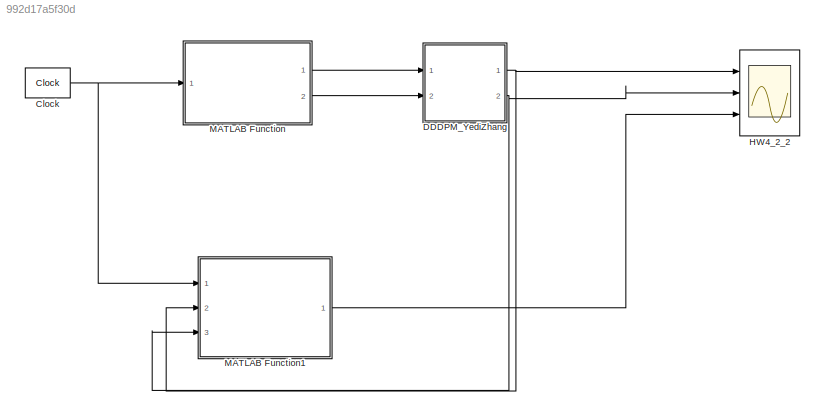
MODEL slx_992d17a5f30d
KIND model
CONFIG AbsTol = auto
CONFIG EnableMultiTasking = on
CONFIG FixedStep = 1
CONFIG MaxStep = auto
CONFIG MinStep = auto
CONFIG RelTol = 1e-3
CONFIG SampleTimeConstraint = Unconstrained
CONFIG Solver = FixedStepDiscrete
CONFIG SolverName = FixedStepDiscrete
CONFIG StartTime = 0.0
CONFIG StopTime = 6000
BLOCK [Clock] Clock
  DisplayTime = on
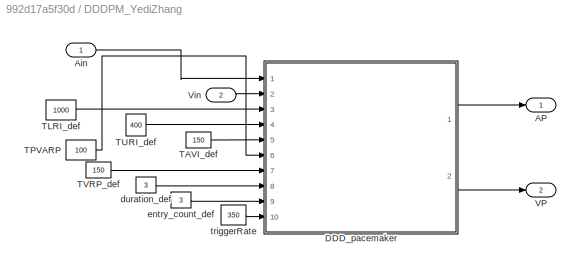
BLOCK [SubSystem] DDDPM_YediZhang
  Ports = [2, 2]
  RequestExecContextInheritance = off
  Variant = off
BLOCK [Outport] DDDPM_YediZhang/AP
  IconDisplay = Port number
BLOCK [Inport] DDDPM_YediZhang/Ain
  IconDisplay = Port number
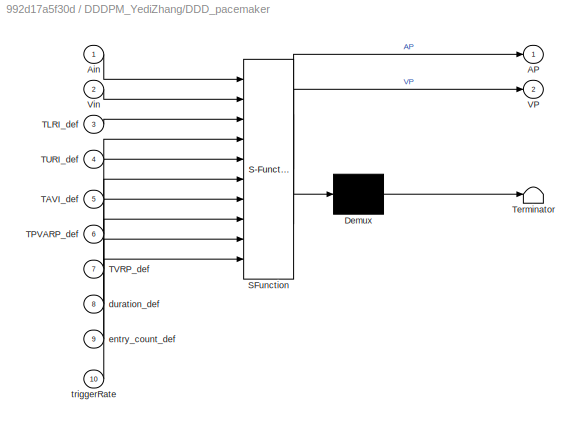
BLOCK [SubSystem] DDDPM_YediZhang/DDD_pacemaker
  ErrorFcn = Stateflow.Translate.translate
  PermitHierarchicalResolution = ExplicitOnly
  Ports = [10, 2]
  RequestExecContextInheritance = off
  SFBlockType = Chart
  TreatAsAtomicUnit = on
  Variant = off
BLOCK [Demux] DDDPM_YediZhang/DDD_pacemaker/ Demux 
  Outputs = 1
  Ports = [1, 1]
BLOCK [S-Function] DDDPM_YediZhang/DDD_pacemaker/ SFunction 
  EnableBusSupport = on
  FunctionName = sf_sfun
  PortCounts = [10 3]
  Ports = [10, 3]
  SFcnIsStateOwnerBlock = off
  SFunctionDeploymentMode = off
  Tag = Stateflow S-Function HW4_YediZhang_2_2 3
BLOCK [Terminator] DDDPM_YediZhang/DDD_pacemaker/ Terminator 
BLOCK [Outport] DDDPM_YediZhang/DDD_pacemaker/AP
  IconDisplay = Port number
BLOCK [Inport] DDDPM_YediZhang/DDD_pacemaker/Ain
  IconDisplay = Port number
BLOCK [Inport] DDDPM_YediZhang/DDD_pacemaker/TAVI_def
  IconDisplay = Port number
  Port = 5
BLOCK [Inport] DDDPM_YediZhang/DDD_pacemaker/TLRI_def
  IconDisplay = Port number
  Port = 3
BLOCK [Inport] DDDPM_YediZhang/DDD_pacemaker/TPVARP_def
  IconDisplay = Port number
  Port = 6
BLOCK [Inport] DDDPM_YediZhang/DDD_pacemaker/TURI_def
  IconDisplay = Port number
  Port = 4
BLOCK [Inport] DDDPM_YediZhang/DDD_pacemaker/TVRP_def
  IconDisplay = Port number
  Port = 7
BLOCK [Outport] DDDPM_YediZhang/DDD_pacemaker/VP
  IconDisplay = Port number
  Port = 2
BLOCK [Inport] DDDPM_YediZhang/DDD_pacemaker/Vin
  IconDisplay = Port number
  Port = 2
BLOCK [Inport] DDDPM_YediZhang/DDD_pacemaker/duration_def
  IconDisplay = Port number
  Port = 8
BLOCK [Inport] DDDPM_YediZhang/DDD_pacemaker/entry_count_def
  IconDisplay = Port number
  Port = 9
BLOCK [Inport] DDDPM_YediZhang/DDD_pacemaker/triggerRate
  IconDisplay = Port number
  Port = 10
BLOCK [Constant] DDDPM_YediZhang/TAVI_def
  OutDataTypeStr = uint16
  Value = 150
BLOCK [Constant] DDDPM_YediZhang/TLRI_def
  OutDataTypeStr = uint16
  Value = 1000
BLOCK [Constant] DDDPM_YediZhang/TPVARP
  OutDataTypeStr = uint16
  Value = 100
BLOCK [Constant] DDDPM_YediZhang/TURI_def
  OutDataTypeStr = uint16
  Value = 400
BLOCK [Constant] DDDPM_YediZhang/TVRP_def
  OutDataTypeStr = uint16
  Value = 150
BLOCK [Outport] DDDPM_YediZhang/VP
  IconDisplay = Port number
  Port = 2
BLOCK [Inport] DDDPM_YediZhang/Vin
  IconDisplay = Port number
  Port = 2
BLOCK [Constant] DDDPM_YediZhang/duration_def
  OutDataTypeStr = uint16
  Value = 3
BLOCK [Constant] DDDPM_YediZhang/entry_count_def
  OutDataTypeStr = uint16
  Value = 3
BLOCK [Constant] DDDPM_YediZhang/triggerRate
  OutDataTypeStr = uint16
  Value = 350
BLOCK [Scope] HW4_2_2
  NumInputPorts = 3
  Ports = [3]
  ScopeSpecificationString = Simulink.scopes.TimeScopeBlockCfg('CurrentConfiguration', extmgr.ConfigurationSet(extmgr.Configuration('Core','General UI',true),extmgr.Configuration('Core','Source UI',true),extmgr.Configuration('Sources','WiredSimulink',true,'DataLoggingVariableName','ScopeData1'),extmgr.Configuration('Visuals','Time Domain',true,'SerializedDisplays',{struct('MinYLimReal','-0.125','MaxYLimReal','1.125','YLabelRe...<+2946ch>
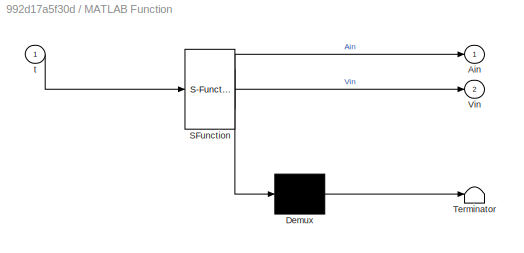
BLOCK [SubSystem] MATLAB Function
  ErrorFcn = Stateflow.Translate.translate
  PermitHierarchicalResolution = ExplicitOnly
  Ports = [1, 2]
  RequestExecContextInheritance = off
  SFBlockType = MATLAB Function
  TreatAsAtomicUnit = on
  Variant = off
BLOCK [Demux] MATLAB Function/ Demux 
  Outputs = 1
  Ports = [1, 1]
BLOCK [S-Function] MATLAB Function/ SFunction 
  EnableBusSupport = on
  FunctionName = sf_sfun
  PortCounts = [1 3]
  Ports = [1, 3]
  SFcnIsStateOwnerBlock = off
  SFunctionDeploymentMode = off
  Tag = Stateflow S-Function HW4_YediZhang_2_2 1
BLOCK [Terminator] MATLAB Function/ Terminator 
BLOCK [Outport] MATLAB Function/Ain
  IconDisplay = Port number
BLOCK [Outport] MATLAB Function/Vin
  IconDisplay = Port number
  Port = 2
BLOCK [Inport] MATLAB Function/t
  IconDisplay = Port number
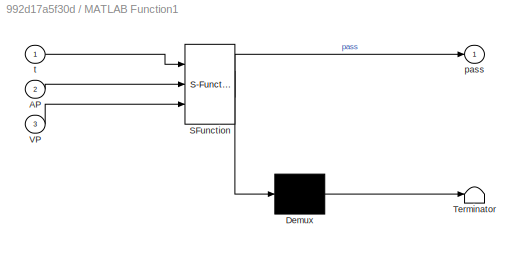
BLOCK [SubSystem] MATLAB Function1
  ErrorFcn = Stateflow.Translate.translate
  PermitHierarchicalResolution = ExplicitOnly
  Ports = [3, 1]
  RequestExecContextInheritance = off
  SFBlockType = MATLAB Function
  TreatAsAtomicUnit = on
  Variant = off
BLOCK [Demux] MATLAB Function1/ Demux 
  Outputs = 1
  Ports = [1, 1]
BLOCK [S-Function] MATLAB Function1/ SFunction 
  EnableBusSupport = on
  FunctionName = sf_sfun
  PortCounts = [3 2]
  Ports = [3, 2]
  SFcnIsStateOwnerBlock = off
  SFunctionDeploymentMode = off
  Tag = Stateflow S-Function HW4_YediZhang_2_2 2
BLOCK [Terminator] MATLAB Function1/ Terminator 
BLOCK [Inport] MATLAB Function1/AP
  IconDisplay = Port number
  Port = 2
BLOCK [Inport] MATLAB Function1/VP
  IconDisplay = Port number
  Port = 3
BLOCK [Outport] MATLAB Function1/pass
  IconDisplay = Port number
BLOCK [Inport] MATLAB Function1/t
  IconDisplay = Port number
NET Clock:1 -> MATLAB Function1:1, MATLAB Function:1
LINE DDDPM_YediZhang/Ain:1 -> DDDPM_YediZhang/DDD_pacemaker:1
LINE DDDPM_YediZhang/DDD_pacemaker:1 -> DDDPM_YediZhang/AP:1
LINE DDDPM_YediZhang/DDD_pacemaker:2 -> DDDPM_YediZhang/VP:1
LINE DDDPM_YediZhang/TAVI_def:1 -> DDDPM_YediZhang/DDD_pacemaker:5
LINE DDDPM_YediZhang/TLRI_def:1 -> DDDPM_YediZhang/DDD_pacemaker:3
LINE DDDPM_YediZhang/TPVARP:1 -> DDDPM_YediZhang/DDD_pacemaker:6
LINE DDDPM_YediZhang/TURI_def:1 -> DDDPM_YediZhang/DDD_pacemaker:4
LINE DDDPM_YediZhang/TVRP_def:1 -> DDDPM_YediZhang/DDD_pacemaker:7
LINE DDDPM_YediZhang/Vin:1 -> DDDPM_YediZhang/DDD_pacemaker:2
LINE DDDPM_YediZhang/duration_def:1 -> DDDPM_YediZhang/DDD_pacemaker:8
LINE DDDPM_YediZhang/entry_count_def:1 -> DDDPM_YediZhang/DDD_pacemaker:9
LINE DDDPM_YediZhang/triggerRate:1 -> DDDPM_YediZhang/DDD_pacemaker:10
NET DDDPM_YediZhang:1 -> HW4_2_2:1, MATLAB Function1:2
NET DDDPM_YediZhang:2 -> HW4_2_2:2, MATLAB Function1:3
LINE MATLAB Function1:1 -> HW4_2_2:3
LINE MATLAB Function:1 -> DDDPM_YediZhang:1
LINE MATLAB Function:2 -> DDDPM_YediZhang:2
note: NET lines group one-source signal fan-out (src -> all destinations, sorted); 1:1 wires keep LINE
CHART MATLAB Function states=1 transitions=1
  STATE_LABEL 'eML_blk_kernel()'
  STATE_LABEL 'SCRIPT:\nfunction [Ain,Vin] = PM_tester_in(t)\n\n%Test inputs of Ain\nif t==50 || t==150 || t==220 || t==500 || t==1210 || t==1860 || t==2420 || t==3600 || t==3610 || t==3620 || t==3630 || t==3640 || t==4350 || t==4800 || t==5550\n    Ain=true;\nelse\n    Ain=false;\nend\n\n\n\n\n%Test inputs of Vin\nif t==169 || t==330 || t==3730 || t==3900 || t==4100 || t==4300 || t==4500\n    Vin=true;\nelse\n    Vin=false;\nend...<+3ch>'
CHART MATLAB Function1 states=1 transitions=1
  STATE_LABEL 'eML_blk_kernel()'
  STATE_LABEL 'SCRIPT:\nfunction pass = PM_tester_out(t,AP,VP)\npass=true;\n% Evaluating PM outputs -- 1\nif t==731\n    if VP==true\n        \n    else\n        pass=false;\n        return;\n    end\nend\n% Evaluating PM outputs -- 2\nif t==1361\n    if VP==true\n        \n    else\n        pass=false;\n        return;\n    end\nend\n% Evaluating PM outputs -- 3\nif t==2011\n    if VP==true\n        \n    else\n        pass=false;\n     ...<+510ch>'
CHART DDDPM_YediZhang/DDD_pacemaker states=77 transitions=56
  STATE_LABEL '<!DOCTYPE HTML PUBLIC "-//W3C//DTD HTML 4.0//EN" "http://www.w3.org/TR/REC-html40/strict.dtd">\n<html><head><meta name="qrichtext" content="1" /><style type="text/css">\np, li { white-space: pre-wrap; }\n</style></head><body style=" font-family:\'Arial\'; font-size:12px; font-weight:400; font-style:normal;">\n<p style=" margin-top:0px; margin-bottom:0px; margin-left:0px; margin-right:0px; -qt-block-inde...<+132ch>'
  STATE_LABEL 'DDD_pacemaker'
  STATE_LABEL 'PVARP\n'
  STATE_LABEL 'PVARP_off'
  STATE_LABEL 'AS_up'
  STATE_LABEL '<!DOCTYPE HTML PUBLIC "-//W3C//DTD HTML 4.0//EN" "http://www.w3.org/TR/REC-html40/strict.dtd">\n<html><head><meta name="qrichtext" content="1" /><style type="text/css">\np, li { white-space: pre-wrap; }\n</style></head><body style=" font-family:\'Arial\'; font-size:12px; font-weight:400; font-style:normal;">\n<p style=" margin-top:0px; margin-bottom:0px; margin-left:0px; margin-right:0px; -qt-block-inde...<+134ch>'  <repeated x10 — deduplicated; at blocks: DDD_pacemaker>
  STATE_LABEL 'PVARP_on'
  STATE_LABEL 'AR_up'
  STATE_LABEL '{AS=false;}'
  STATE_LABEL '[Ain==true]/{AS=true}'
  STATE_LABEL '{AS=false;}'
  STATE_LABEL '[VS==true || VP_internal==true]/{TPVARP_cur=TPVARP_def;}'
  STATE_LABEL '[TPVARP_cur<=0]'
  STATE_LABEL '{AR=false,TPVARP_cur = TPVARP_cur - 1;}'
  STATE_LABEL '[TPVARP_cur>0]/\n{TPVARP_cur = TPVARP_cur - 1;}'
  STATE_LABEL '[Ain==true]/{AR=true;}'
  STATE_LABEL 'Pre_duration__Counter\n'
  STATE_LABEL '<!DOCTYPE HTML PUBLIC "-//W3C//DTD HTML 4.0//EN" "http://www.w3.org/TR/REC-html40/strict.dtd">\n<html><head><meta name="qrichtext" content="1" /><style type="text/css">\np, li { white-space: pre-wrap; }\n</style></head><body style=" font-family:\'Arial\'; font-size:12px; font-weight:400; font-style:normal;">\n<p style=" margin-top:0px; margin-bottom:0px; margin-left:0px; margin-right:0px; -qt-block-inde...<+135ch>'  <repeated x4 — deduplicated; at blocks: DDD_pacemaker>
  STATE_LABEL 'Pre_on'
  STATE_LABEL '{monitor=false,preCounter=0;}'
  STATE_LABEL '[monitor==true&&(AR==true||AS==true)&&TMonitor_cur>triggerRate]/\n{TMonitor_cur=0, preCounter=preCounter-1;}'
  STATE_LABEL '[monitor==true&&(AR==true||AS==true)&&TMonitor_cur<=triggerRate]/{TMonitor_cur=0, preCounter=preCounter+1;}'
  STATE_LABEL '[monitor==false&&(AS==true||AR==true)]/{monitor=true,TMonitor_cur=0;}'
  STATE_LABEL '[monitor==true&&AR==false&&AS==false]/{TMonitor_cur=TMonitor_cur+1;}'
  STATE_LABEL 'VRP \n'
  STATE_LABEL 'VRP_off'
  STATE_LABEL 'VS_up'
  STATE_LABEL 'VRP_on'
